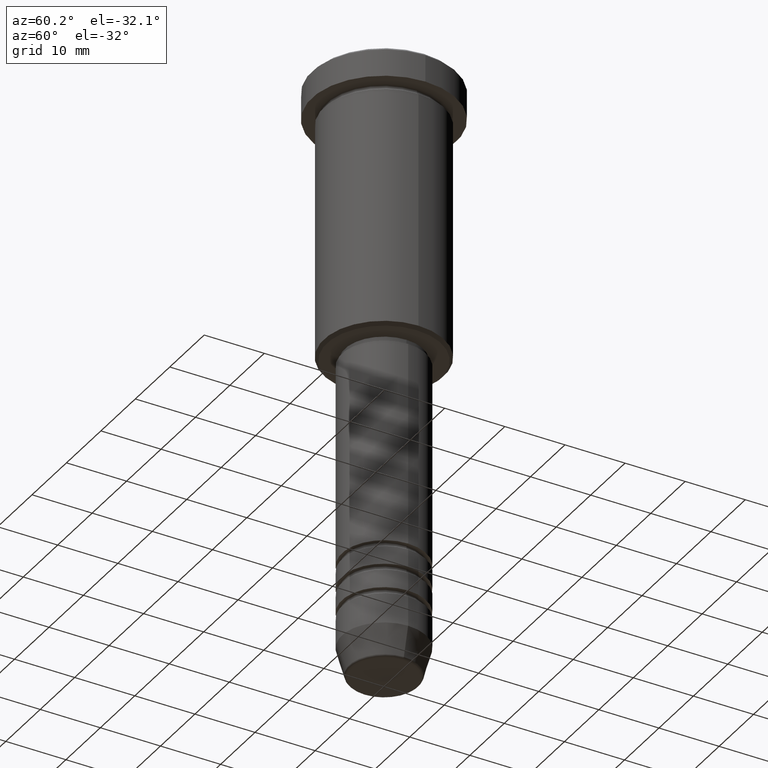
[diagram: clean part render]
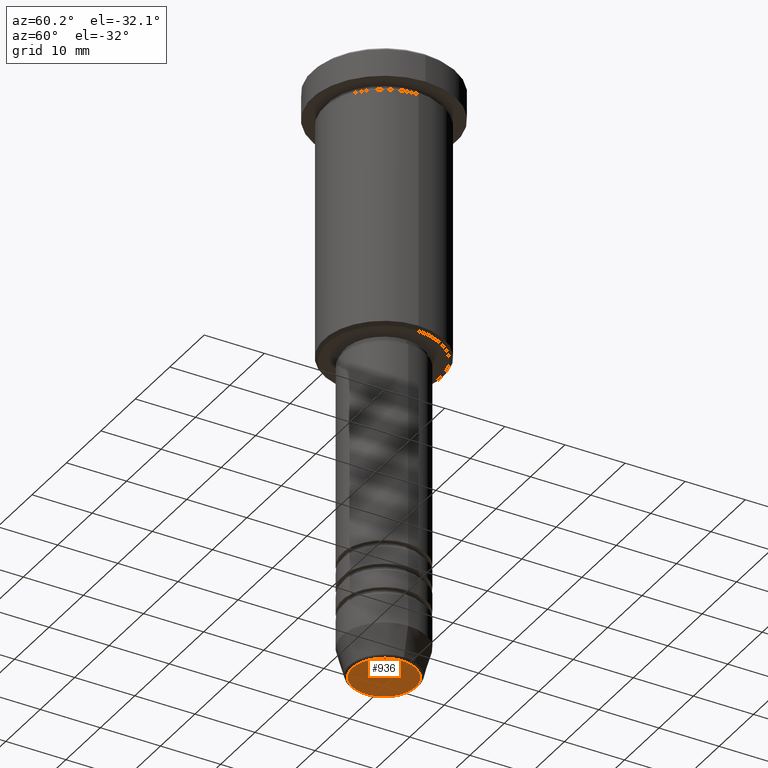
[diagram: same view with one face highlighted and labeled with its STEP entity id]
A machine part, auxiliary view. The second image highlights one B-rep face of the part: STEP entity #936.
In plain terms, the highlighted planar face has unit normal (0, -0, 1).
Its self-contained STEP definition (entity closure, byte-faithful):
#64 = CARTESIAN_POINT ( 'NONE',  ( 0.000000000000000000, 0.000000000000000000, -100.0000000000000000 ) ) ;
#79 = CARTESIAN_POINT ( 'NONE',  ( 0.000000000000000000, 0.000000000000000000, -100.0000000000000000 ) ) ;
#109 = FACE_OUTER_BOUND ( 'NONE', #866, .T. ) ;
#116 = DIRECTION ( 'NONE',  ( 0.000000000000000000, -0.000000000000000000, 1.000000000000000000 ) ) ;
#192 = EDGE_CURVE ( 'NONE', #452, #632, #794, .T. ) ;
#294 = AXIS2_PLACEMENT_3D ( 'NONE', #79, #1025, #759 ) ;
#299 = AXIS2_PLACEMENT_3D ( 'NONE', #474, #116, #1036 ) ;
#371 = CARTESIAN_POINT ( 'NONE',  ( 5.276590543854903004, 0.000000000000000000, -100.0000000000000000 ) ) ;
#392 = CIRCLE ( 'NONE', #951, 5.276590543854903004 ) ;
#430 = DIRECTION ( 'NONE',  ( 0.000000000000000000, 0.000000000000000000, -1.000000000000000000 ) ) ;
#452 = VERTEX_POINT ( 'NONE', #521 ) ;
#474 = CARTESIAN_POINT ( 'NONE',  ( 0.000000000000000000, 0.000000000000000000, -100.0000000000000000 ) ) ;
#497 = ORIENTED_EDGE ( 'NONE', *, *, #1122, .T. ) ;
#521 = CARTESIAN_POINT ( 'NONE',  ( -5.276590543854903004, 6.757689212787765916E-16, -100.0000000000000000 ) ) ;
#574 = PLANE ( 'NONE',  #299 ) ;
#632 = VERTEX_POINT ( 'NONE', #371 ) ;
#658 = DIRECTION ( 'NONE',  ( 1.000000000000000000, 0.000000000000000000, 0.000000000000000000 ) ) ;
#759 = DIRECTION ( 'NONE',  ( 1.000000000000000000, 0.000000000000000000, 0.000000000000000000 ) ) ;
#794 = CIRCLE ( 'NONE', #294, 5.276590543854903004 ) ;
#866 = EDGE_LOOP ( 'NONE', ( #497, #997 ) ) ;
#936 = ADVANCED_FACE ( 'NONE', ( #109 ), #574, .F. ) ;
#951 = AXIS2_PLACEMENT_3D ( 'NONE', #64, #430, #658 ) ;
#997 = ORIENTED_EDGE ( 'NONE', *, *, #192, .T. ) ;
#1025 = DIRECTION ( 'NONE',  ( 0.000000000000000000, 0.000000000000000000, -1.000000000000000000 ) ) ;
#1036 = DIRECTION ( 'NONE',  ( 1.000000000000000000, 0.000000000000000000, 0.000000000000000000 ) ) ;
#1122 = EDGE_CURVE ( 'NONE', #632, #452, #392, .T. ) ;